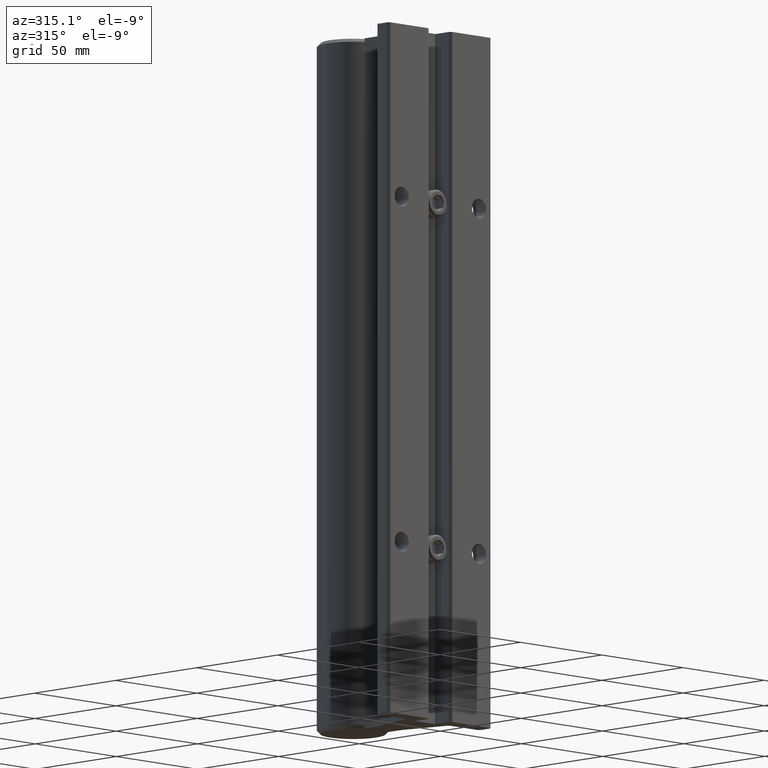
[diagram: clean part render]
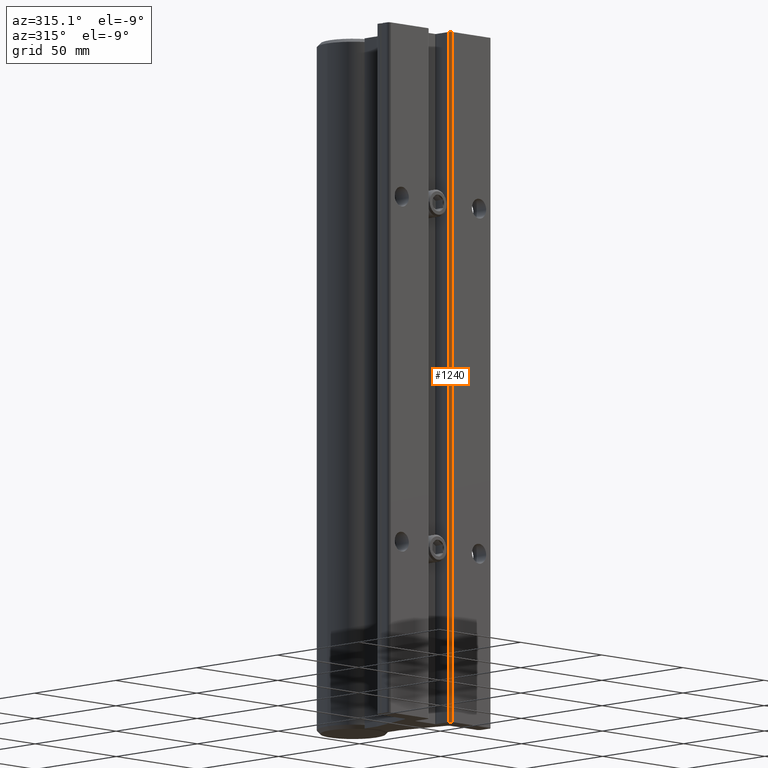
[diagram: same view with one face highlighted and labeled with its STEP entity id]
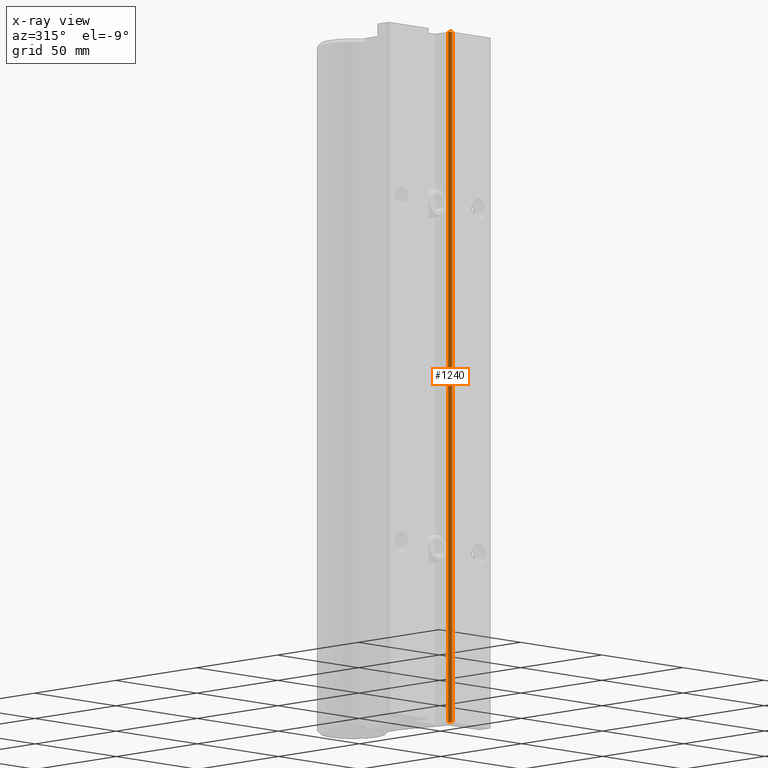
[diagram: x-ray of the same camera — body ghosted, the highlighted face saturated]
A machine part, auxiliary view. The second image highlights one B-rep face of the part: STEP entity #1240.
The next image is the same camera in x-ray: the body ghosted, the highlighted face saturated — about 0% of this face is hidden behind the body in this view.
In plain terms, the highlighted cylindrical surface (edge-blend (fillet) strip) has radius 1.6002 mm, axis along (0, 0, 1).
Its self-contained STEP definition (entity closure, byte-faithful):
#52 = CARTESIAN_POINT ( 'NONE',  ( 0.2914527309704845193, 0.003799364890487562114, -12.00000000000000178 ) ) ;
#129 = EDGE_LOOP ( 'NONE', ( #4115, #2343, #655, #2804 ) ) ;
#211 = DIRECTION ( 'NONE',  ( 0.000000000000000000, 0.000000000000000000, 1.000000000000000000 ) ) ;
#410 = AXIS2_PLACEMENT_3D ( 'NONE', #2773, #1178, #2460 ) ;
#546 = CYLINDRICAL_SURFACE ( 'NONE', #410, 0.06299999999999984779 ) ;
#655 = ORIENTED_EDGE ( 'NONE', *, *, #3627, .F. ) ;
#851 = FACE_OUTER_BOUND ( 'NONE', #129, .T. ) ;
#939 = AXIS2_PLACEMENT_3D ( 'NONE', #1676, #2962, #1654 ) ;
#1116 = CARTESIAN_POINT ( 'NONE',  ( 0.2914527309704845193, 0.003799364890487553440, -14.94793013549425531 ) ) ;
#1130 = AXIS2_PLACEMENT_3D ( 'NONE', #2118, #211, #3434 ) ;
#1178 = DIRECTION ( 'NONE',  ( 0.000000000000000000, 0.000000000000000000, 1.000000000000000000 ) ) ;
#1196 = CIRCLE ( 'NONE', #1130, 0.06299999999999984779 ) ;
#1240 = ADVANCED_FACE ( 'NONE', ( #851 ), #546, .T. ) ;
#1279 = VERTEX_POINT ( 'NONE', #2168 ) ;
#1428 = CARTESIAN_POINT ( 'NONE',  ( 0.2500000000000008327, 0.06300000000000012534, -14.94793013549425531 ) ) ;
#1654 = DIRECTION ( 'NONE',  ( 1.000000000000000000, 1.761608329247793071E-15, 0.000000000000000000 ) ) ;
#1676 = CARTESIAN_POINT ( 'NONE',  ( 0.3130000000000006666, 0.06299999999999998657, -12.00000000000000178 ) ) ;
#2037 = VERTEX_POINT ( 'NONE', #2618 ) ;
#2118 = CARTESIAN_POINT ( 'NONE',  ( 0.3130000000000006666, 0.06299999999999998657, 0.000000000000000000 ) ) ;
#2168 = CARTESIAN_POINT ( 'NONE',  ( 0.2500000000000008327, 0.06300000000000012534, 0.000000000000000000 ) ) ;
#2281 = CIRCLE ( 'NONE', #939, 0.06299999999999984779 ) ;
#2317 = EDGE_CURVE ( 'NONE', #3840, #2469, #2281, .T. ) ;
#2343 = ORIENTED_EDGE ( 'NONE', *, *, #2921, .T. ) ;
#2372 = DIRECTION ( 'NONE',  ( 0.000000000000000000, 0.000000000000000000, 1.000000000000000000 ) ) ;
#2460 = DIRECTION ( 'NONE',  ( 1.000000000000000000, 0.000000000000000000, 0.000000000000000000 ) ) ;
#2469 = VERTEX_POINT ( 'NONE', #3675 ) ;
#2618 = CARTESIAN_POINT ( 'NONE',  ( 0.2914527309704845193, 0.003799364890487562114, 0.000000000000000000 ) ) ;
#2706 = LINE ( 'NONE', #1116, #3602 ) ;
#2773 = CARTESIAN_POINT ( 'NONE',  ( 0.3130000000000006666, 0.06299999999999998657, -14.94793013549425531 ) ) ;
#2804 = ORIENTED_EDGE ( 'NONE', *, *, #2894, .F. ) ;
#2894 = EDGE_CURVE ( 'NONE', #2469, #1279, #2987, .T. ) ;
#2921 = EDGE_CURVE ( 'NONE', #3840, #2037, #2706, .T. ) ;
#2962 = DIRECTION ( 'NONE',  ( -0.000000000000000000, -0.000000000000000000, -1.000000000000000000 ) ) ;
#2987 = LINE ( 'NONE', #1428, #3005 ) ;
#3005 = VECTOR ( 'NONE', #3703, 39.37007874015748143 ) ;
#3434 = DIRECTION ( 'NONE',  ( 1.000000000000000000, 0.000000000000000000, 0.000000000000000000 ) ) ;
#3602 = VECTOR ( 'NONE', #2372, 39.37007874015748143 ) ;
#3627 = EDGE_CURVE ( 'NONE', #1279, #2037, #1196, .T. ) ;
#3675 = CARTESIAN_POINT ( 'NONE',  ( 0.2500000000000008327, 0.06300000000000012534, -12.00000000000000178 ) ) ;
#3703 = DIRECTION ( 'NONE',  ( 0.000000000000000000, 0.000000000000000000, 1.000000000000000000 ) ) ;
#3840 = VERTEX_POINT ( 'NONE', #52 ) ;
#4115 = ORIENTED_EDGE ( 'NONE', *, *, #2317, .F. ) ;